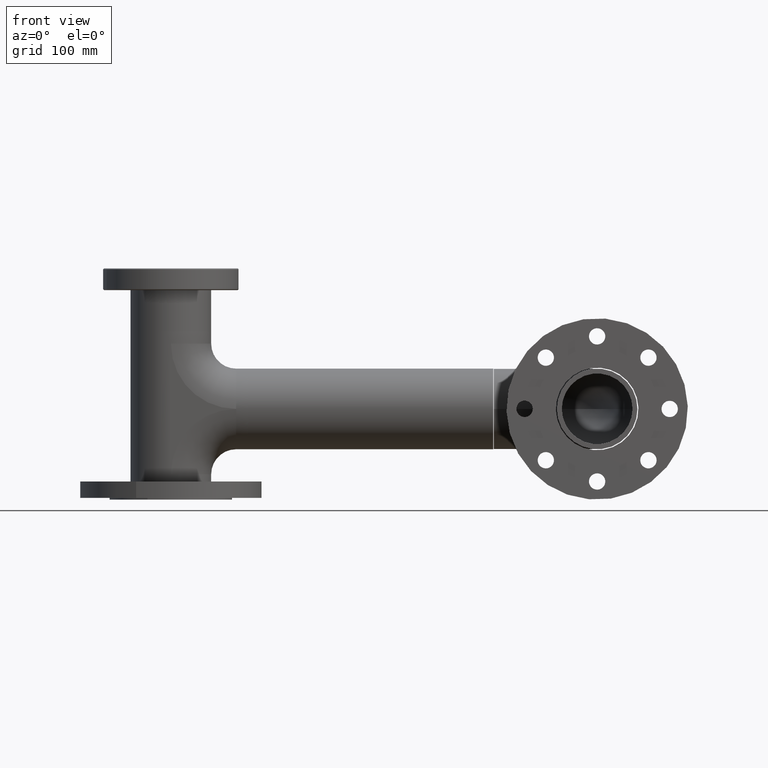
[diagram: clean part render]
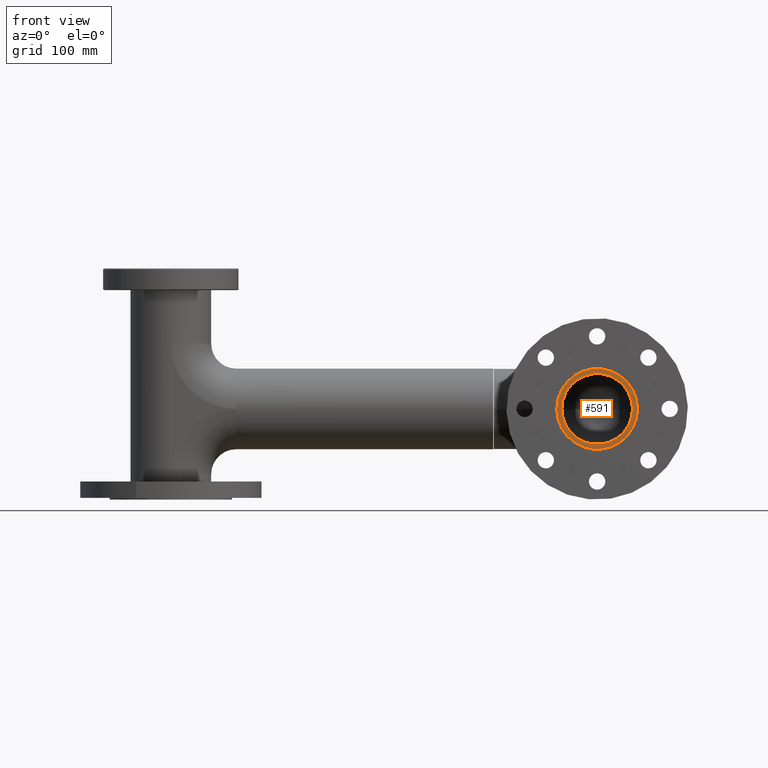
[diagram: same view with one face highlighted and labeled with its STEP entity id]
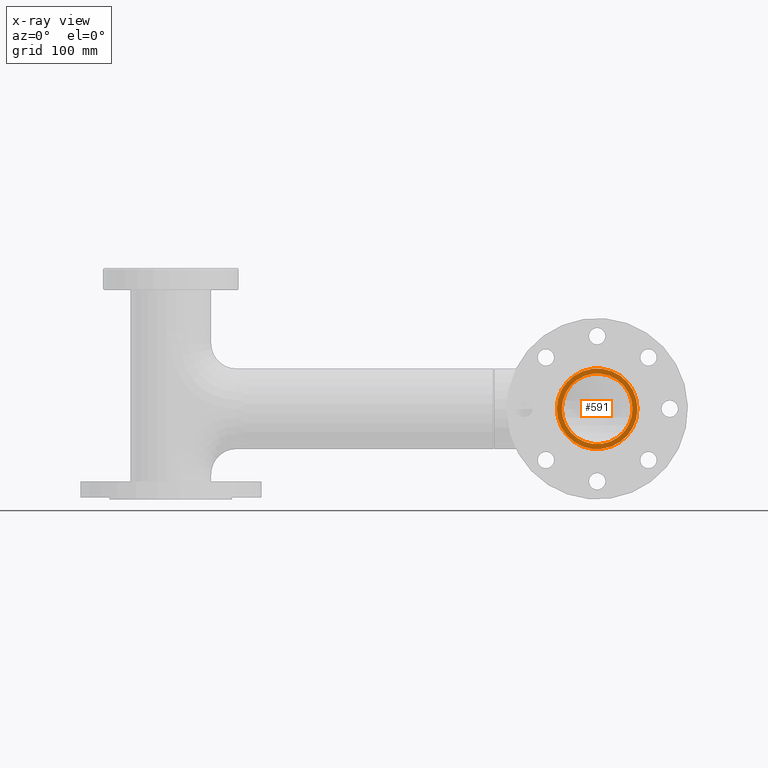
[diagram: x-ray of the same camera — body ghosted, the highlighted face saturated]
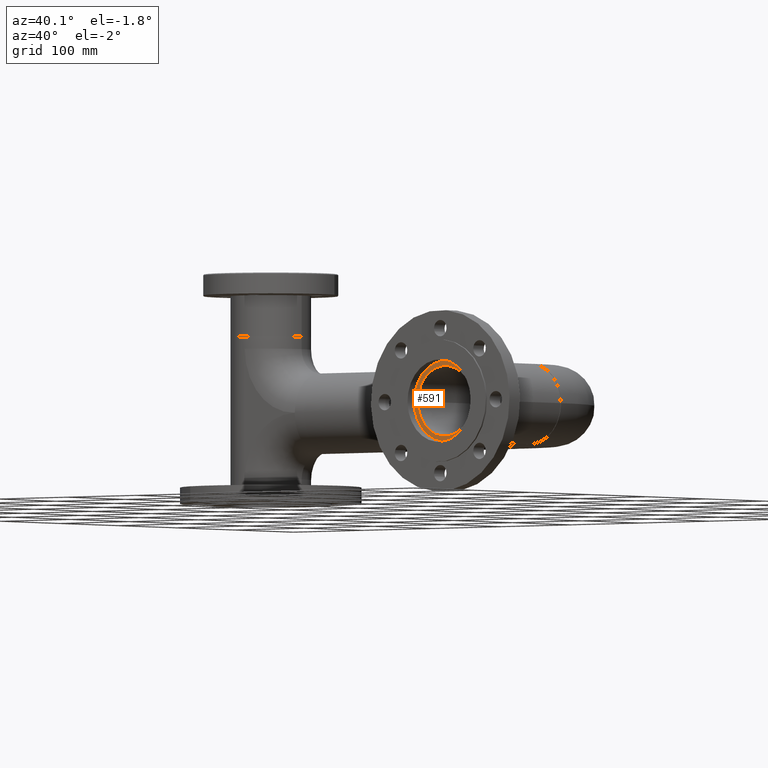
[diagram: same view with one face highlighted and labeled with its STEP entity id]
A machine part, front view. The second image highlights one B-rep face of the part: STEP entity #591.
The next image is the same camera in x-ray: the body ghosted, the highlighted face saturated — about 0% of this face is hidden behind the body in this view.
A second angle (auxiliary view) of the same face is appended — the face is thin or edge-on in the first view.
In plain terms, the highlighted planar face has unit normal (0, 1, 0).
Its self-contained STEP definition (entity closure, byte-faithful):
#17 = ORIENTED_EDGE ( 'NONE', *, *, #21, .T. ) ;
#21 = EDGE_CURVE ( 'NONE', #2712, #2806, #2126, .T. ) ;
#31 = DIRECTION ( 'NONE',  ( 9.563980653223914515E-17, 1.000000000000000000, 0.000000000000000000 ) ) ;
#103 = ORIENTED_EDGE ( 'NONE', *, *, #1252, .F. ) ;
#212 = AXIS2_PLACEMENT_3D ( 'NONE', #3394, #3363, #797 ) ;
#225 = FACE_OUTER_BOUND ( 'NONE', #1698, .T. ) ;
#550 = FACE_BOUND ( 'NONE', #2753, .T. ) ;
#591 = ADVANCED_FACE ( 'NONE', ( #550, #225 ), #2622, .F. ) ;
#607 = DIRECTION ( 'NONE',  ( -1.000000000000000000, 8.907437617339186785E-17, 0.000000000000000000 ) ) ;
#797 = DIRECTION ( 'NONE',  ( -1.000000000000000000, 8.907437617339186785E-17, 0.000000000000000000 ) ) ;
#823 = CARTESIAN_POINT ( 'NONE',  ( 0.000000000000000000, 9.999999999999994671, 0.000000000000000000 ) ) ;
#997 = DIRECTION ( 'NONE',  ( -1.000000000000000000, 7.805279981897889979E-17, 0.000000000000000000 ) ) ;
#1159 = ORIENTED_EDGE ( 'NONE', *, *, #2137, .F. ) ;
#1187 = AXIS2_PLACEMENT_3D ( 'NONE', #2362, #2081, #997 ) ;
#1252 = EDGE_CURVE ( 'NONE', #2125, #1517, #2355, .T. ) ;
#1323 = DIRECTION ( 'NONE',  ( -1.000000000000000000, 9.563980653223914515E-17, 0.000000000000000000 ) ) ;
#1352 = CARTESIAN_POINT ( 'NONE',  ( 38.95000000000000995, 9.999999999999991118, 0.000000000000000000 ) ) ;
#1407 = DIRECTION ( 'NONE',  ( 9.563980653223914515E-17, 1.000000000000000000, 0.000000000000000000 ) ) ;
#1517 = VERTEX_POINT ( 'NONE', #3196 ) ;
#1660 = CARTESIAN_POINT ( 'NONE',  ( 0.000000000000000000, 9.999999999999994671, 0.000000000000000000 ) ) ;
#1698 = EDGE_LOOP ( 'NONE', ( #103, #1159 ) ) ;
#1746 = EDGE_CURVE ( 'NONE', #2806, #2712, #2311, .T. ) ;
#1845 = AXIS2_PLACEMENT_3D ( 'NONE', #2945, #1407, #607 ) ;
#1962 = CARTESIAN_POINT ( 'NONE',  ( 44.45000000000002416, 9.999999999999991118, 0.000000000000000000 ) ) ;
#2081 = DIRECTION ( 'NONE',  ( 9.563980653223914515E-17, 1.000000000000000000, 0.000000000000000000 ) ) ;
#2125 = VERTEX_POINT ( 'NONE', #1962 ) ;
#2126 = CIRCLE ( 'NONE', #1845, 38.95000000000000995 ) ;
#2137 = EDGE_CURVE ( 'NONE', #1517, #2125, #2314, .T. ) ;
#2257 = AXIS2_PLACEMENT_3D ( 'NONE', #1660, #2765, #2723 ) ;
#2311 = CIRCLE ( 'NONE', #212, 38.95000000000000995 ) ;
#2314 = CIRCLE ( 'NONE', #2257, 44.45000000000002416 ) ;
#2355 = CIRCLE ( 'NONE', #1187, 44.45000000000002416 ) ;
#2362 = CARTESIAN_POINT ( 'NONE',  ( 0.000000000000000000, 9.999999999999994671, 0.000000000000000000 ) ) ;
#2568 = CARTESIAN_POINT ( 'NONE',  ( -38.95000000000000995, 9.999999999999998224, 4.769999282678943171E-15 ) ) ;
#2622 = PLANE ( 'NONE',  #3404 ) ;
#2652 = ORIENTED_EDGE ( 'NONE', *, *, #1746, .T. ) ;
#2712 = VERTEX_POINT ( 'NONE', #1352 ) ;
#2723 = DIRECTION ( 'NONE',  ( -1.000000000000000000, 7.805279981897889979E-17, 0.000000000000000000 ) ) ;
#2753 = EDGE_LOOP ( 'NONE', ( #17, #2652 ) ) ;
#2765 = DIRECTION ( 'NONE',  ( 9.563980653223914515E-17, 1.000000000000000000, 0.000000000000000000 ) ) ;
#2806 = VERTEX_POINT ( 'NONE', #2568 ) ;
#2945 = CARTESIAN_POINT ( 'NONE',  ( 0.000000000000000000, 9.999999999999994671, 0.000000000000000000 ) ) ;
#3196 = CARTESIAN_POINT ( 'NONE',  ( -44.45000000000002416, 9.999999999999998224, 5.443555022209989642E-15 ) ) ;
#3363 = DIRECTION ( 'NONE',  ( 9.563980653223914515E-17, 1.000000000000000000, 0.000000000000000000 ) ) ;
#3394 = CARTESIAN_POINT ( 'NONE',  ( 0.000000000000000000, 9.999999999999994671, 0.000000000000000000 ) ) ;
#3404 = AXIS2_PLACEMENT_3D ( 'NONE', #823, #31, #1323 ) ;